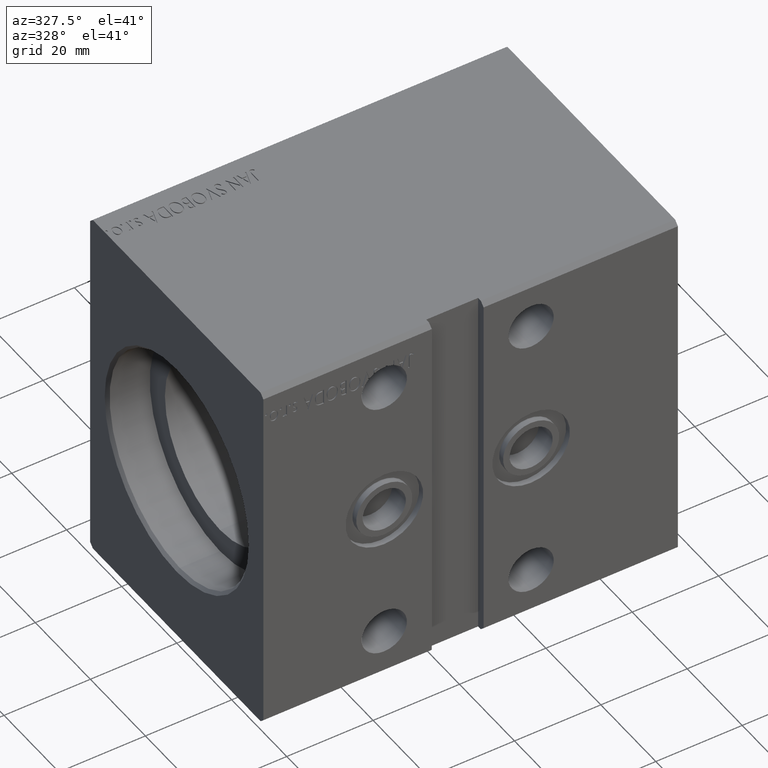
[diagram: clean part render]
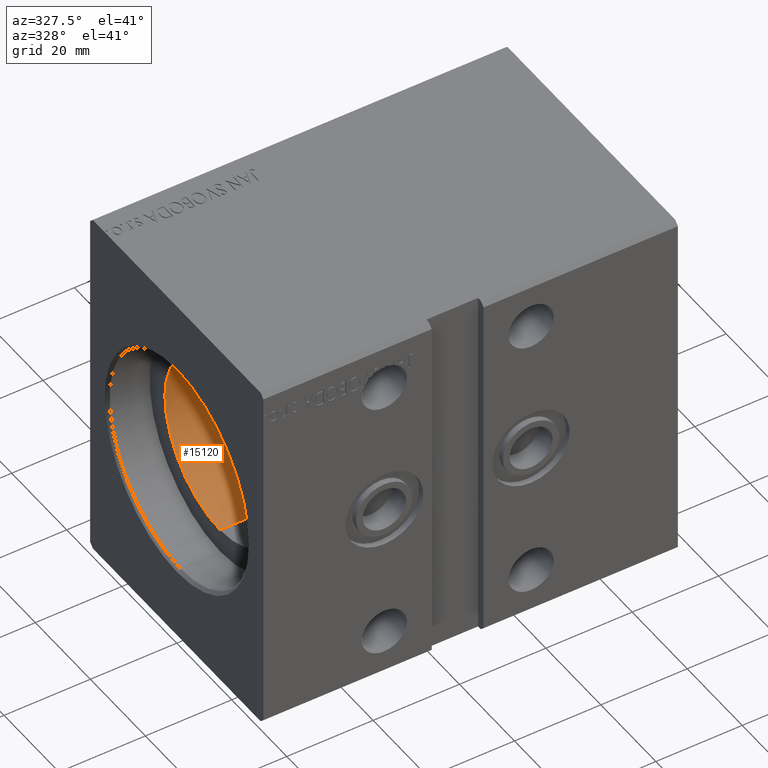
[diagram: same view with one face highlighted and labeled with its STEP entity id]
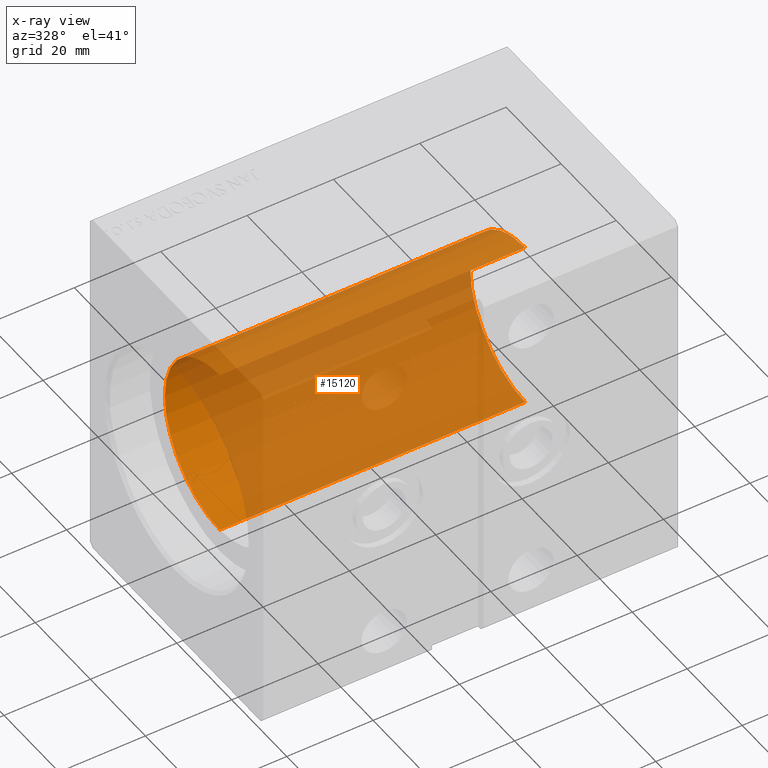
[diagram: x-ray of the same camera — body ghosted, the highlighted face saturated]
A machine part, auxiliary view. The second image highlights one B-rep face of the part: STEP entity #15120.
The next image is the same camera in x-ray: the body ghosted, the highlighted face saturated — about 89% of this face is hidden behind the body in this view.
In plain terms, the highlighted cylindrical surface (partial cylindrical patch) has radius 20 mm, axis along (-1, -0, -0).
Its self-contained STEP definition (entity closure, byte-faithful):
#1064 = EDGE_CURVE ( 'NONE', #37322, #33060, #35450, .T. ) ;
#1946 = EDGE_LOOP ( 'NONE', ( #6579, #36363, #37425, #19343 ) ) ;
#3539 = DIRECTION ( 'NONE',  ( 0.000000000000000000, 0.000000000000000000, 1.000000000000000000 ) ) ;
#3738 = FACE_OUTER_BOUND ( 'NONE', #1946, .T. ) ;
#6579 = ORIENTED_EDGE ( 'NONE', *, *, #36743, .F. ) ;
#9310 = CARTESIAN_POINT ( 'NONE',  ( 9.999999999999994671, 2.449293598294706513E-15, -20.00000000000000000 ) ) ;
#10524 = EDGE_CURVE ( 'NONE', #37322, #22254, #36337, .T. ) ;
#10645 = VECTOR ( 'NONE', #35017, 1000.000000000000000 ) ;
#12387 = VERTEX_POINT ( 'NONE', #9310 ) ;
#15120 = ADVANCED_FACE ( 'NONE', ( #3738 ), #25940, .F. ) ;
#15542 = CARTESIAN_POINT ( 'NONE',  ( 9.999999999999994671, 0.000000000000000000, 0.000000000000000000 ) ) ;
#16411 = CARTESIAN_POINT ( 'NONE',  ( 9.999999999999994671, 0.000000000000000000, 20.00000000000000000 ) ) ;
#16697 = CARTESIAN_POINT ( 'NONE',  ( 80.70000000000000284, 0.000000000000000000, 0.000000000000000000 ) ) ;
#17841 = CARTESIAN_POINT ( 'NONE',  ( 80.70000000000000284, 0.000000000000000000, 20.00000000000000000 ) ) ;
#17899 = AXIS2_PLACEMENT_3D ( 'NONE', #15542, #19244, #21923 ) ;
#19108 = CARTESIAN_POINT ( 'NONE',  ( 80.70000000000000284, 0.000000000000000000, 0.000000000000000000 ) ) ;
#19244 = DIRECTION ( 'NONE',  ( -1.000000000000000000, 0.000000000000000000, 0.000000000000000000 ) ) ;
#19343 = ORIENTED_EDGE ( 'NONE', *, *, #38647, .T. ) ;
#19403 = LINE ( 'NONE', #29049, #10645 ) ;
#21923 = DIRECTION ( 'NONE',  ( 0.000000000000000000, 0.000000000000000000, 1.000000000000000000 ) ) ;
#22254 = VERTEX_POINT ( 'NONE', #16411 ) ;
#24035 = CARTESIAN_POINT ( 'NONE',  ( 80.70000000000000284, 0.000000000000000000, 20.00000000000000000 ) ) ;
#25940 = CYLINDRICAL_SURFACE ( 'NONE', #33979, 20.00000000000000000 ) ;
#28340 = DIRECTION ( 'NONE',  ( 0.000000000000000000, 0.000000000000000000, 1.000000000000000000 ) ) ;
#28641 = VECTOR ( 'NONE', #35927, 1000.000000000000000 ) ;
#29049 = CARTESIAN_POINT ( 'NONE',  ( 80.70000000000000284, 2.449293598294706513E-15, -20.00000000000000000 ) ) ;
#33060 = VERTEX_POINT ( 'NONE', #33088 ) ;
#33088 = CARTESIAN_POINT ( 'NONE',  ( 80.70000000000000284, 2.449293598294706513E-15, -20.00000000000000000 ) ) ;
#33979 = AXIS2_PLACEMENT_3D ( 'NONE', #16697, #35600, #3539 ) ;
#34109 = DIRECTION ( 'NONE',  ( -1.000000000000000000, 0.000000000000000000, 0.000000000000000000 ) ) ;
#35017 = DIRECTION ( 'NONE',  ( -1.000000000000000000, -0.000000000000000000, -0.000000000000000000 ) ) ;
#35450 = CIRCLE ( 'NONE', #40696, 20.00000000000000000 ) ;
#35600 = DIRECTION ( 'NONE',  ( -1.000000000000000000, -0.000000000000000000, -0.000000000000000000 ) ) ;
#35927 = DIRECTION ( 'NONE',  ( -1.000000000000000000, -0.000000000000000000, -0.000000000000000000 ) ) ;
#36337 = LINE ( 'NONE', #17841, #28641 ) ;
#36363 = ORIENTED_EDGE ( 'NONE', *, *, #1064, .F. ) ;
#36743 = EDGE_CURVE ( 'NONE', #33060, #12387, #19403, .T. ) ;
#37322 = VERTEX_POINT ( 'NONE', #24035 ) ;
#37425 = ORIENTED_EDGE ( 'NONE', *, *, #10524, .T. ) ;
#37573 = CIRCLE ( 'NONE', #17899, 20.00000000000000000 ) ;
#38647 = EDGE_CURVE ( 'NONE', #22254, #12387, #37573, .T. ) ;
#40696 = AXIS2_PLACEMENT_3D ( 'NONE', #19108, #34109, #28340 ) ;